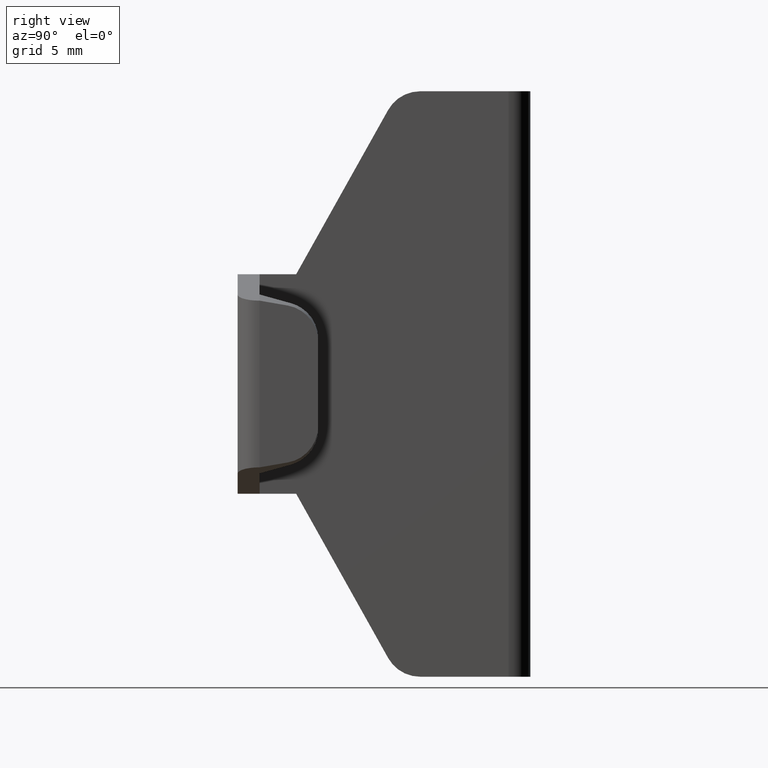
[diagram: clean part render]
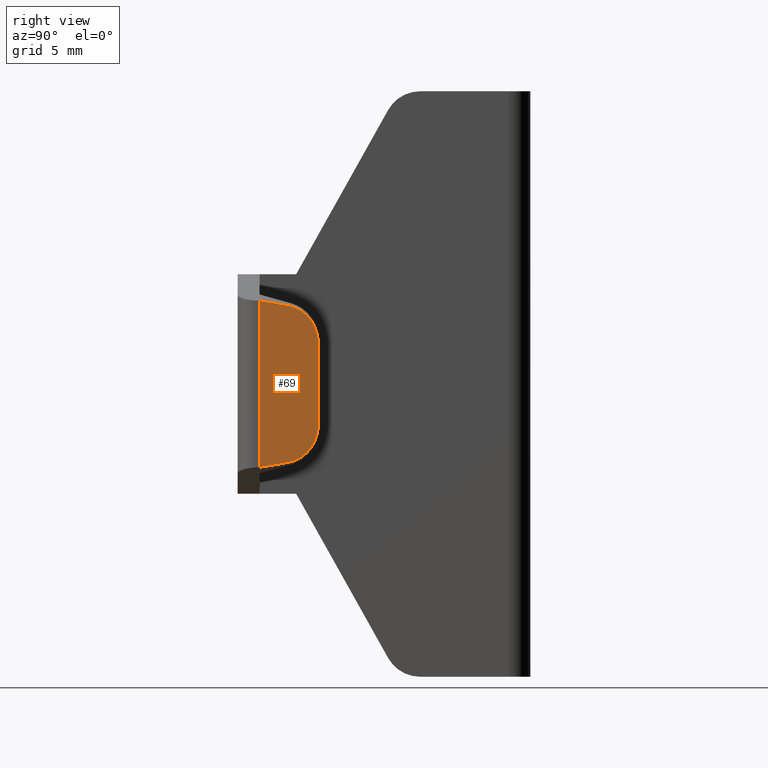
[diagram: same view with one face highlighted and labeled with its STEP entity id]
A machine part, right view. The second image highlights one B-rep face of the part: STEP entity #69.
In plain terms, the highlighted planar face has unit normal (-1, 0, 0).
Its self-contained STEP definition (entity closure, byte-faithful):
#69=ADVANCED_FACE('',(#370),#369,.F.);
#369=PLANE('',#597);
#370=FACE_OUTER_BOUND('',#598,.T.);
#594=CARTESIAN_POINT('',(2.22999880000E+01,-1.79000000000E+01,-6.83332776386E+00));
#595=DIRECTION('',(-1.00000000000E+00,0.00000000000E+00,0.00000000000E+00));
#596=DIRECTION('',(0.00000000000E+00,0.00000000000E+00,1.00000000000E+00));
#597=AXIS2_PLACEMENT_3D('',#594,#595,#596);
#598=EDGE_LOOP('',(#786,#787,#788,#789,#790,#791));
#786=ORIENTED_EDGE('',*,*,#820,.T.);
#787=ORIENTED_EDGE('',*,*,#890,.T.);
#788=ORIENTED_EDGE('',*,*,#904,.F.);
#789=ORIENTED_EDGE('',*,*,#814,.F.);
#790=ORIENTED_EDGE('',*,*,#882,.F.);
#791=ORIENTED_EDGE('',*,*,#893,.T.);
#814=EDGE_CURVE('',#909,#910,#911,.T.);
#820=EDGE_CURVE('',#952,#945,#953,.T.);
#882=EDGE_CURVE('',#1364,#909,#1371,.T.);
#890=EDGE_CURVE('',#945,#1422,#1423,.T.);
#893=EDGE_CURVE('',#1364,#952,#1442,.T.);
#904=EDGE_CURVE('',#910,#1422,#1511,.T.);
#909=VERTEX_POINT('',#1541);
#910=VERTEX_POINT('',#1542);
#911=(BOUNDED_CURVE() B_SPLINE_CURVE(3,(#1543,#1544,#1545,#1546,#1547,#1548,#1549,#1550,#1551,#1552,#1553,#1554,#1555,#1556),.UNSPECIFIED.,.F.,.F.) B_SPLINE_CURVE_WITH_KNOTS((4,2,2,2,2,2,4),(0.00000000000E+00,8.76091521893E-04,1.31413728284E-03,1.75218304379E-03,2.19022880473E-03,2.62827456568E-03,3.50436608757E-03),.UNSPECIFIED.) CURVE() GEOMETRIC_REPRESENTATION_ITEM() RATIONAL_B_SPLINE_CURVE((1.00000000000E+00,1.00000000000E+00,1.00000000000E+00,1.00000000000E+00,1.00000000000E+00,1.00000000000E+00,1.00000000000E+00,1.00000000000E+00,1.00000000000E+00,1.00000000000E+00,1.00000000000E+00,1.00000000000E+00,1.00000000000E+00,1.00000000000E+00)) REPRESENTATION_ITEM('') );
#945=VERTEX_POINT('',#1593);
#952=VERTEX_POINT('',#1598);
#953=LINE('',#1599,#1600);
#1364=VERTEX_POINT('',#1849);
#1371=LINE('',#1853,#1854);
#1422=VERTEX_POINT('',#1880);
#1423=(BOUNDED_CURVE() B_SPLINE_CURVE(3,(#1881,#1882,#1883,#1884,#1885,#1886,#1887,#1888,#1889,#1890,#1891,#1892,#1893,#1894),.UNSPECIFIED.,.F.,.F.) B_SPLINE_CURVE_WITH_KNOTS((4,2,2,2,2,2,4),(0.00000000000E+00,8.76091521893E-04,1.31413728284E-03,1.75218304379E-03,2.19022880473E-03,2.62827456568E-03,3.50436608757E-03),.UNSPECIFIED.) CURVE() GEOMETRIC_REPRESENTATION_ITEM() RATIONAL_B_SPLINE_CURVE((1.00000000000E+00,1.00000000000E+00,1.00000000000E+00,1.00000000000E+00,1.00000000000E+00,1.00000000000E+00,1.00000000000E+00,1.00000000000E+00,1.00000000000E+00,1.00000000000E+00,1.00000000000E+00,1.00000000000E+00,1.00000000000E+00,1.00000000000E+00)) REPRESENTATION_ITEM('') );
#1442=LINE('',#1921,#1922);
#1511=LINE('',#1957,#1958);
#1541=CARTESIAN_POINT('',(2.22999880000E+01,-1.55766201433E+01,5.36051883085E+00));
#1542=CARTESIAN_POINT('',(2.22999880000E+01,-1.35000000000E+01,2.87040637198E+00));
#1543=CARTESIAN_POINT('',(2.22999880000E+01,-1.55766201433E+01,5.36051883085E+00));
#1544=CARTESIAN_POINT('',(2.22999880000E+01,-1.52847236514E+01,5.30984222629E+00));
#1545=CARTESIAN_POINT('',(2.22999880000E+01,-1.50089887736E+01,5.20911096432E+00));
#1546=CARTESIAN_POINT('',(2.22999880000E+01,-1.46258081889E+01,4.98641918493E+00));
#1547=CARTESIAN_POINT('',(2.22999880000E+01,-1.45063455098E+01,4.90192444187E+00));
#1548=CARTESIAN_POINT('',(2.22999880000E+01,-1.42833212709E+01,4.71318569722E+00));
#1549=CARTESIAN_POINT('',(2.22999880000E+01,-1.41790222796E+01,4.60801605314E+00));
#1550=CARTESIAN_POINT('',(2.22999880000E+01,-1.39907306798E+01,4.38124810939E+00));
#1551=CARTESIAN_POINT('',(2.22999880000E+01,-1.39075653278E+01,4.26100393924E+00));
#1552=CARTESIAN_POINT('',(2.22999880000E+01,-1.37625435611E+01,4.00720252331E+00));
#1553=CARTESIAN_POINT('',(2.22999880000E+01,-1.37002584336E+01,3.87230984578E+00));
#1554=CARTESIAN_POINT('',(2.22999880000E+01,-1.35508892501E+01,3.45706309077E+00));
#1555=CARTESIAN_POINT('',(2.22999880000E+01,-1.35000000000E+01,3.16658163067E+00));
#1556=CARTESIAN_POINT('',(2.22999880000E+01,-1.35000000000E+01,2.87040637198E+00));
#1593=CARTESIAN_POINT('',(2.22999880000E+01,-1.55766201433E+01,-5.36051883085E+00));
#1598=CARTESIAN_POINT('',(2.22999880000E+01,-1.75000000000E+01,-5.69443980321E+00));
#1599=CARTESIAN_POINT('',(2.22999880000E+01,-1.75000000000E+01,-5.69443980321E+00));
#1600=VECTOR('',#1601,1.95215093911E+00);
#1601=DIRECTION('',(-1.81989702109E-15,9.85261855627E-01,1.71052845186E-01));
#1849=CARTESIAN_POINT('',(2.22999880000E+01,-1.75000000000E+01,5.69443980321E+00));
#1853=CARTESIAN_POINT('',(2.22999880000E+01,-1.75000000000E+01,5.69443980321E+00));
#1854=VECTOR('',#1855,1.95215093911E+00);
#1855=DIRECTION('',(-1.81989702109E-15,9.85261855627E-01,-1.71052845186E-01));
#1880=CARTESIAN_POINT('',(2.22999880000E+01,-1.35000000000E+01,-2.87040637198E+00));
#1881=CARTESIAN_POINT('',(2.22999880000E+01,-1.55766201433E+01,-5.36051883085E+00));
#1882=CARTESIAN_POINT('',(2.22999880000E+01,-1.52847236514E+01,-5.30984222629E+00));
#1883=CARTESIAN_POINT('',(2.22999880000E+01,-1.50089887736E+01,-5.20911096432E+00));
#1884=CARTESIAN_POINT('',(2.22999880000E+01,-1.46258081889E+01,-4.98641918493E+00));
#1885=CARTESIAN_POINT('',(2.22999880000E+01,-1.45063455098E+01,-4.90192444187E+00));
#1886=CARTESIAN_POINT('',(2.22999880000E+01,-1.42833212709E+01,-4.71318569722E+00));
#1887=CARTESIAN_POINT('',(2.22999880000E+01,-1.41790222796E+01,-4.60801605314E+00));
#1888=CARTESIAN_POINT('',(2.22999880000E+01,-1.39907306798E+01,-4.38124810939E+00));
#1889=CARTESIAN_POINT('',(2.22999880000E+01,-1.39075653278E+01,-4.26100393924E+00));
#1890=CARTESIAN_POINT('',(2.22999880000E+01,-1.37625435611E+01,-4.00720252331E+00));
#1891=CARTESIAN_POINT('',(2.22999880000E+01,-1.37002584336E+01,-3.87230984578E+00));
#1892=CARTESIAN_POINT('',(2.22999880000E+01,-1.35508892501E+01,-3.45706309077E+00));
#1893=CARTESIAN_POINT('',(2.22999880000E+01,-1.35000000000E+01,-3.16658163067E+00));
#1894=CARTESIAN_POINT('',(2.22999880000E+01,-1.35000000000E+01,-2.87040637198E+00));
#1921=CARTESIAN_POINT('',(2.22999880000E+01,-1.75000000000E+01,5.69443980321E+00));
#1922=VECTOR('',#1923,1.13888796064E+01);
#1923=DIRECTION('',(0.00000000000E+00,0.00000000000E+00,-1.00000000000E+00));
#1957=CARTESIAN_POINT('',(2.22999880000E+01,-1.35000000000E+01,2.87040637198E+00));
#1958=VECTOR('',#1959,5.74081274396E+00);
#1959=DIRECTION('',(0.00000000000E+00,3.71311224098E-15,-1.00000000000E+00));